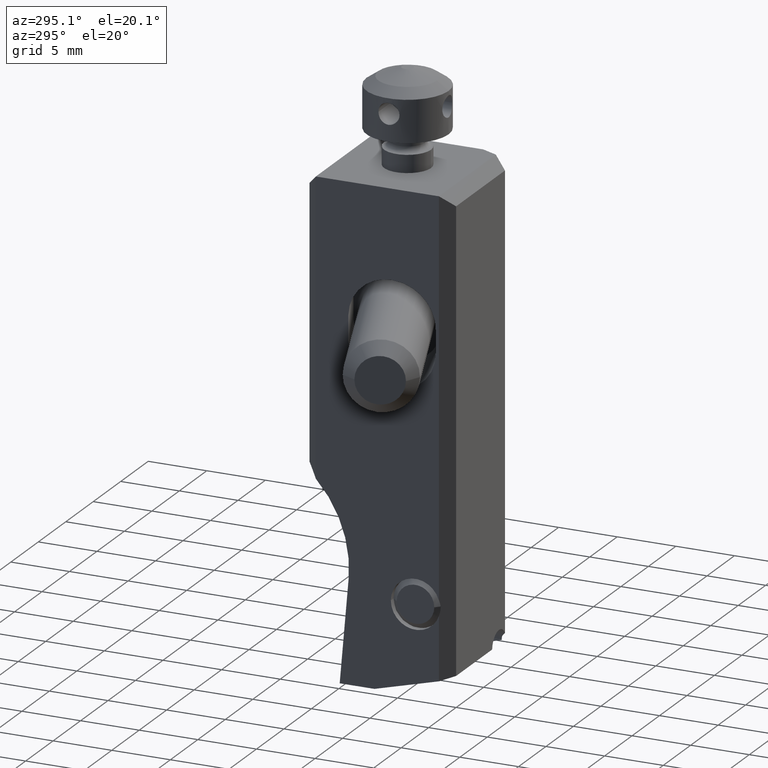
[diagram: clean part render]
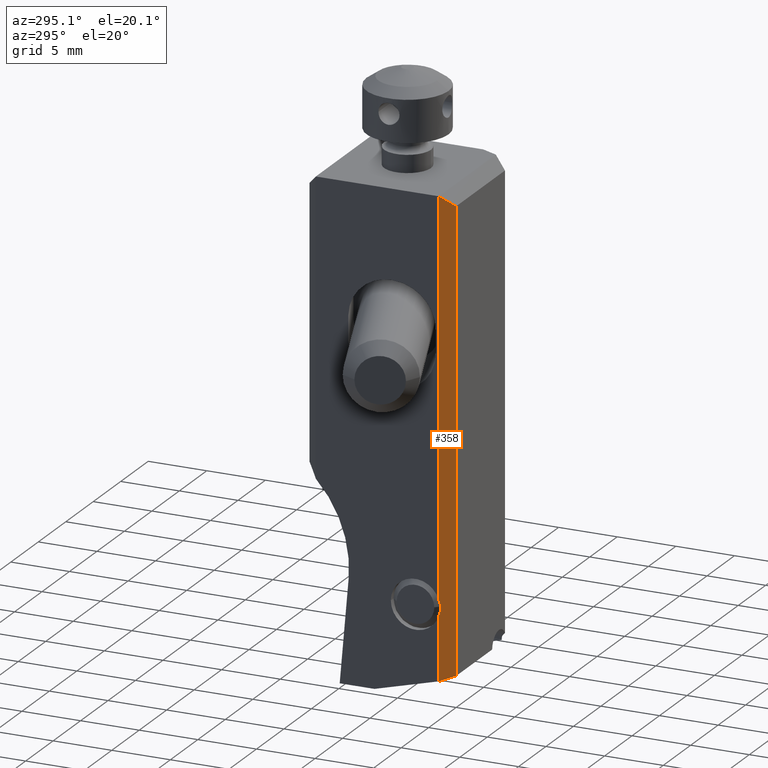
[diagram: same view with one face highlighted and labeled with its STEP entity id]
A machine part, auxiliary view. The second image highlights one B-rep face of the part: STEP entity #358.
In plain terms, the highlighted planar face has unit normal (0.7071, 0.7071, 0).
Its self-contained STEP definition (entity closure, byte-faithful):
#358=ADVANCED_FACE('',(#549),#498,.F.);
#498=PLANE('',#2717);
#549=FACE_OUTER_BOUND('',#682,.T.);
#682=EDGE_LOOP('',(#1218,#1219,#1220,#1221,#1222,#1223,#1224));
#831=LINE('',#3841,#1010);
#842=LINE('',#3878,#1021);
#843=LINE('',#3883,#1022);
#844=LINE('',#3885,#1023);
#845=LINE('',#3886,#1024);
#1010=VECTOR('',#3043,1.);
#1021=VECTOR('',#3078,1.);
#1022=VECTOR('',#3083,1.);
#1023=VECTOR('',#3084,1.);
#1024=VECTOR('',#3085,1.);
#1218=ORIENTED_EDGE('',*,*,#2212,.T.);
#1219=ORIENTED_EDGE('',*,*,#2213,.T.);
#1220=ORIENTED_EDGE('',*,*,#2214,.T.);
#1221=ORIENTED_EDGE('',*,*,#2192,.F.);
#1222=ORIENTED_EDGE('',*,*,#2211,.F.);
#1223=ORIENTED_EDGE('',*,*,#2215,.T.);
#1224=ORIENTED_EDGE('',*,*,#2216,.T.);
#1948=VERTEX_POINT('',#3840);
#1949=VERTEX_POINT('',#3842);
#1962=VERTEX_POINT('',#3877);
#1963=VERTEX_POINT('',#3881);
#1964=VERTEX_POINT('',#3882);
#1965=VERTEX_POINT('',#3884);
#1966=VERTEX_POINT('',#3887);
#2192=EDGE_CURVE('',#1948,#1949,#831,.T.);
#2211=EDGE_CURVE('',#1962,#1948,#842,.T.);
#2212=EDGE_CURVE('',#1963,#1964,#2575,.T.);
#2213=EDGE_CURVE('',#1964,#1965,#843,.T.);
#2214=EDGE_CURVE('',#1965,#1949,#844,.T.);
#2215=EDGE_CURVE('',#1962,#1966,#845,.T.);
#2216=EDGE_CURVE('',#1966,#1963,#2576,.T.);
#2575=ELLIPSE('',#2715,2.9698484809835,2.1);
#2576=ELLIPSE('',#2716,2.9698484809835,2.1);
#2715=AXIS2_PLACEMENT_3D('',#3880,#3081,#3082);
#2716=AXIS2_PLACEMENT_3D('',#3888,#3086,#3087);
#2717=AXIS2_PLACEMENT_3D('',#3889,#3088,#3089);
#3043=DIRECTION('',(0.,0.,-1.));
#3078=DIRECTION('',(0.577350269189626,-0.577350269189626,-0.577350269189626));
#3081=DIRECTION('',(0.707106781186548,0.707106781186548,0.));
#3082=DIRECTION('',(0.707106781186548,-0.707106781186548,0.));
#3083=DIRECTION('',(0.,2.995105706037E-14,-1.));
#3084=DIRECTION('',(0.694746590606969,-0.694746590606869,0.186156787896992));
#3085=DIRECTION('',(0.,0.,-1.));
#3086=DIRECTION('',(0.707106781186548,0.707106781186548,0.));
#3087=DIRECTION('',(0.707106781186548,-0.707106781186548,0.));
#3088=DIRECTION('',(0.707106781186547,0.707106781186547,0.));
#3089=DIRECTION('',(0.707106781186547,-0.707106781186547,0.));
#3840=CARTESIAN_POINT('',(-10.,0.,-1.));
#3841=CARTESIAN_POINT('',(-10.,0.,-1.));
#3842=CARTESIAN_POINT('',(-10.,3.198552533945E-13,-39.6169390899));
#3877=CARTESIAN_POINT('',(-11.,1.,0.));
#3878=CARTESIAN_POINT('',(-11.,1.,0.));
#3880=CARTESIAN_POINT('',(-12.9999999999999,3.,-33.8586088407));
#3881=CARTESIAN_POINT('',(-10.8999999999999,0.9,-33.8586088407));
#3882=CARTESIAN_POINT('',(-11.,1.00000000000005,-34.4989212644434));
#3883=CARTESIAN_POINT('',(-11.,1.,-34.49892126444));
#3884=CARTESIAN_POINT('',(-11.,1.,-39.88488828233));
#3885=CARTESIAN_POINT('',(-11.,1.,-39.88488828233));
#3886=CARTESIAN_POINT('',(-11.,1.,0.));
#3887=CARTESIAN_POINT('',(-11.,1.00000000000005,-33.2182964169566));
#3888=CARTESIAN_POINT('',(-12.9999999999999,3.,-33.8586088407));
#3889=CARTESIAN_POINT('',(-10.5,0.5000000000001,-19.94244414116));